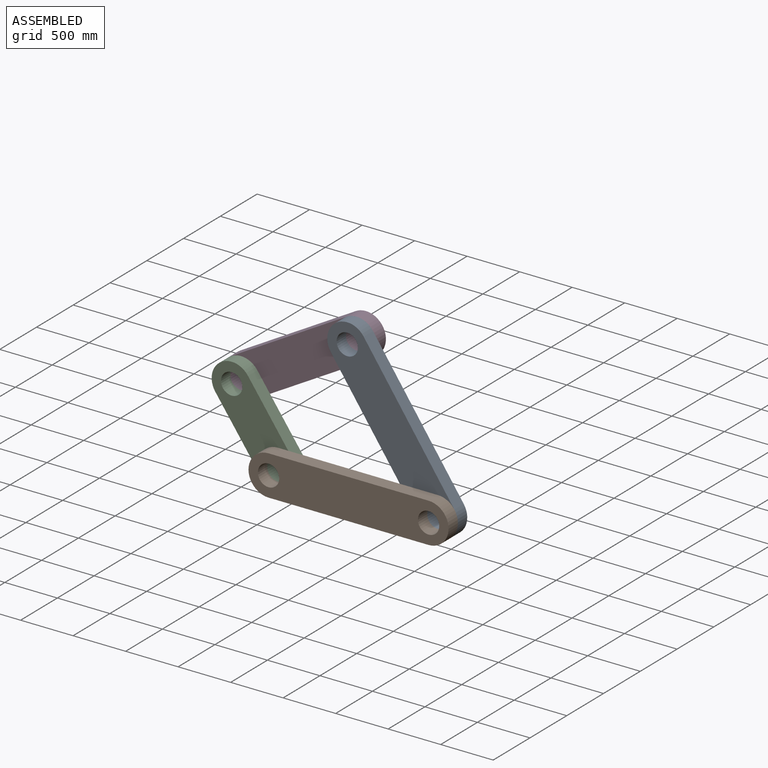
[diagram: assembled view]
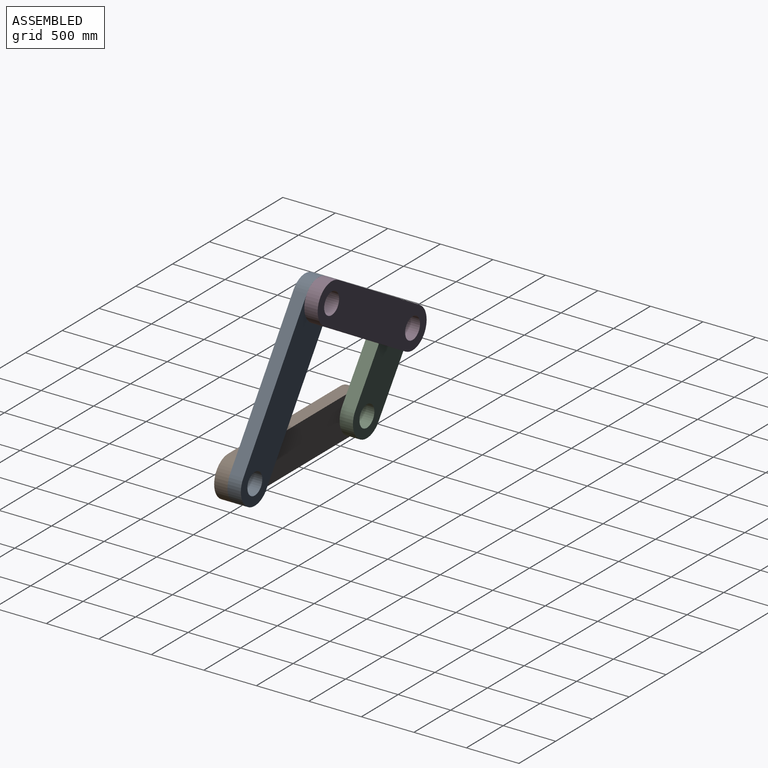
[diagram: assembled view, second angle]
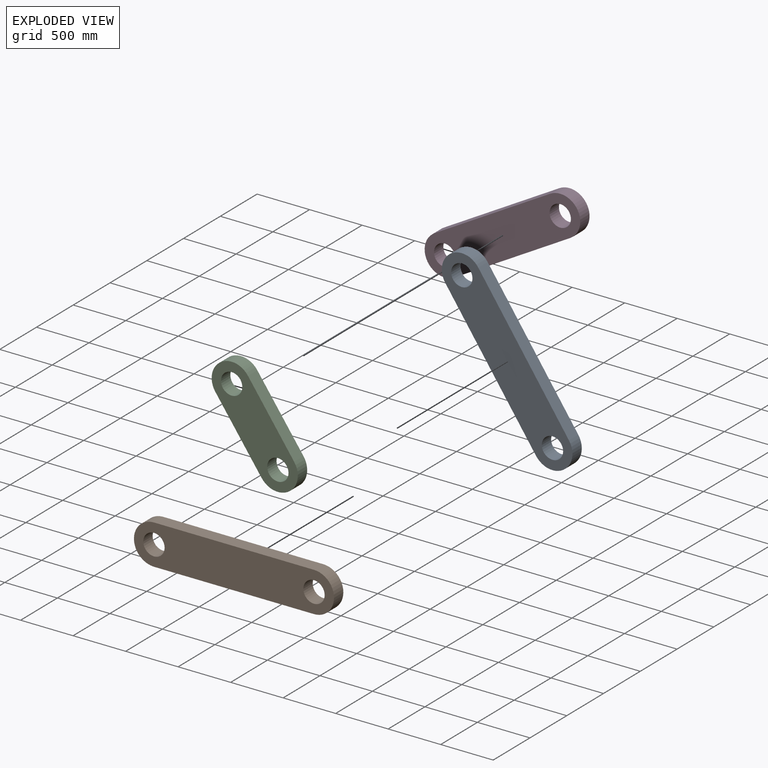
[diagram: exploded view]
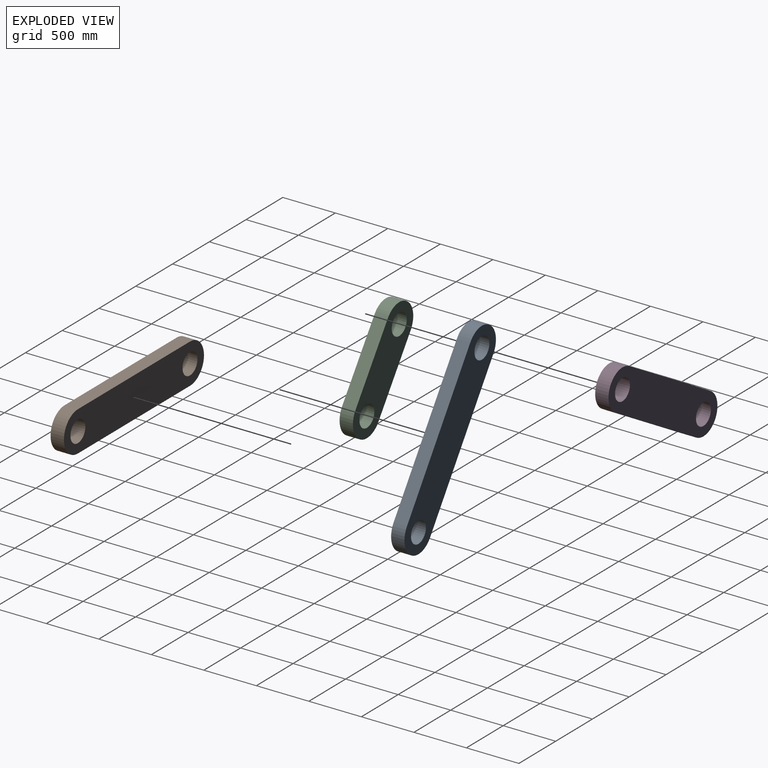
[diagram: exploded view, second angle]
ASSEMBLY  parts=4 mates=7
PART A: 8 faces, bbox 1905x127x381 mm
  f0: plane 1524x127mm, normal (0,0,-1), area 193548mm2, adj f1,f5,f6,f7
  f1: cylinder r=190.5mm len=381mm, axis (0,1,0), area 76006.1mm2, adj f0,f2,f6,f7
  f2: plane 1524x127mm, normal (0,0,1), area 193548mm2, adj f1,f5,f6,f7
  f3: cylinder r=101.6mm len=203.2mm, axis (0,1,0), area 81073.2mm2, adj f6,f7
  f4: cylinder r=101.6mm len=203.2mm, axis (0,1,0), area 81073.2mm2, adj f6,f7
  f5: cylinder r=190.5mm len=381mm, axis (0,1,0), area 76006.1mm2, adj f0,f2,f6,f7
  f6: plane 1905x381mm, normal (0,-1,0), area 629794.6mm2, adj f0,f1,f2,f3,f4,f5
  f7: plane 1905x381mm, normal (0,1,0), area 629794.6mm2, adj f0,f1,f2,f3,f4,f5
PART B: same geometry as A
PART C: 8 faces, bbox 1143x127x381 mm
  f0: plane 762x127mm, normal (0,0,-1), area 96774mm2, adj f1,f5,f6,f7
  f1: cylinder r=190.5mm len=381mm, axis (0,1,0), area 76006.1mm2, adj f0,f2,f6,f7
  f2: plane 762x127mm, normal (0,0,1), area 96774mm2, adj f1,f5,f6,f7
  f3: cylinder r=101.6mm len=203.2mm, axis (0,1,0), area 81073.2mm2, adj f6,f7
  f4: cylinder r=101.6mm len=203.2mm, axis (0,1,0), area 81073.2mm2, adj f6,f7
  f5: cylinder r=190.5mm len=381mm, axis (0,1,0), area 76006.1mm2, adj f0,f2,f6,f7
  f6: plane 1143x381mm, normal (0,-1,0), area 339472.6mm2, adj f0,f1,f2,f3,f4,f5
  f7: plane 1143x381mm, normal (0,1,0), area 339472.6mm2, adj f0,f1,f2,f3,f4,f5
PART D: 8 faces, bbox 1651x127x381 mm
  f0: plane 1270x127mm, normal (0,0,-1), area 161290mm2, adj f1,f5,f6,f7
  f1: cylinder r=190.5mm len=381mm, axis (0,1,0), area 76006.1mm2, adj f0,f2,f6,f7
  f2: plane 1270x127mm, normal (0,0,1), area 161290mm2, adj f1,f5,f6,f7
  f3: cylinder r=101.6mm len=203.2mm, axis (0,1,0), area 81073.2mm2, adj f6,f7
  f4: cylinder r=101.6mm len=203.2mm, axis (0,1,0), area 81073.2mm2, adj f6,f7
  f5: cylinder r=190.5mm len=381mm, axis (0,1,0), area 76006.1mm2, adj f0,f2,f6,f7
  f6: plane 1651x381mm, normal (0,-1,0), area 533020.6mm2, adj f0,f1,f2,f3,f4,f5
  f7: plane 1651x381mm, normal (0,1,0), area 533020.6mm2, adj f0,f1,f2,f3,f4,f5
PLACE A rot(axis=(0,1,0),55.5deg) t=(0.68,1140.12,203.45)mm
PLACE B t=(-660.15,1013.12,-1052.54)mm fixed
PLACE C rot(axis=(0,-1,0),125.2deg) t=(-660.15,1140.12,-1052.54)mm
PLACE D rot(axis=(0,-1,0),29.9deg) t=(-1099.92,1267.12,-430.25)mm
MATE cylindrical C.f3 <-> B.f3  axis (0,1,0) through (-660.15,1140.12,-1052.54)mm
MATE cylindrical A.f1 <-> B.f1  axis (0,-1,0) through (863.85,1013.12,-1052.54)mm
MATE pin_slot D.f3 <-> C.f1  axis (0,-1,0) through (-1099.92,1140.12,-430.25)mm
MATE cylindrical D.f3 <-> C.f1  axis (0,-1,0) through (-1099.92,1140.12,-430.25)mm
MATE pin_slot C.f3 <-> B.f3  axis (0,-1,0) through (-660.15,1013.12,-1052.54)mm
MATE cylindrical A.f3 <-> D.f1  axis (0,1,0) through (0.68,1140.12,203.45)mm
MATE pin_slot A.f1 <-> B.f1  axis (0,-1,0) through (863.85,1013.12,-1052.54)mm
